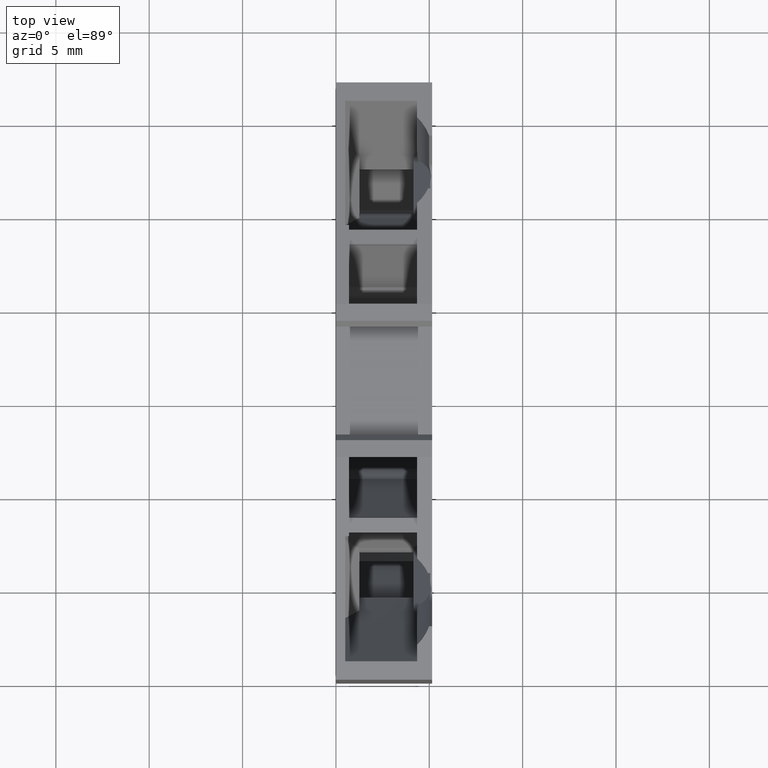
[diagram: clean part render]
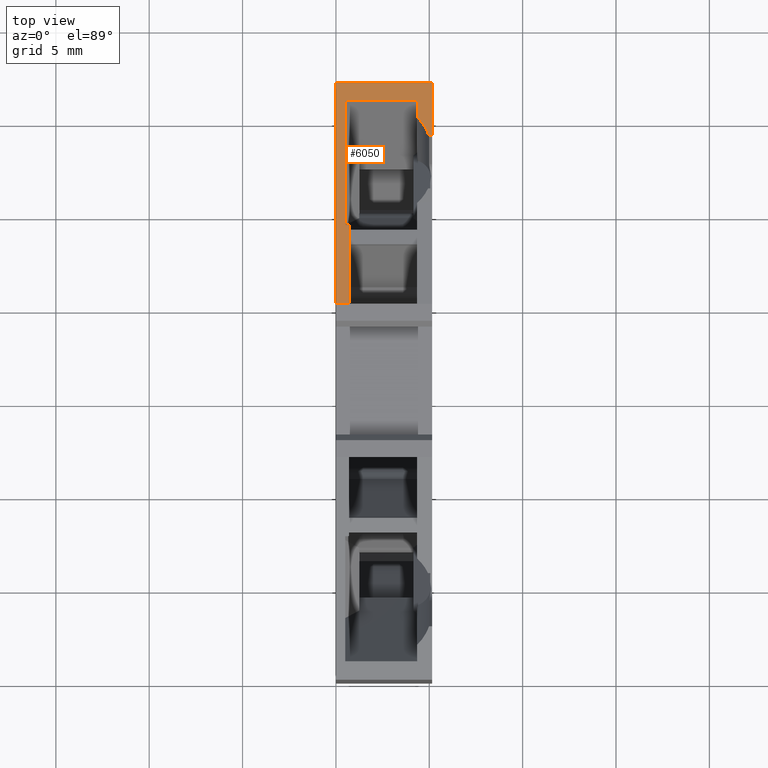
[diagram: same view with one face highlighted and labeled with its STEP entity id]
A machine part, top view. The second image highlights one B-rep face of the part: STEP entity #6050.
In plain terms, the highlighted planar face has unit normal (-0, -0.1736, -0.9848).
Its self-contained STEP definition (entity closure, byte-faithful):
#1500=CARTESIAN_POINT('',(6.44969629117246,75.7148182090403,
55.0499999999999));
#1510=DIRECTION('',(0.422618261740696,-0.906307787036652,
-7.08496653485321E-16));
#1520=VECTOR('',#1510,1.);
#1530=LINE('',#1500,#1520);
#1960=CARTESIAN_POINT('',(-4.13156586621116,98.4064081332756,55.05));
#1970=VERTEX_POINT('',#1960);
#2000=CARTESIAN_POINT('',(-2.90515227636565,95.7763557024449,
55.0499999999999));
#2010=VERTEX_POINT('',#2000);
#2020=EDGE_CURVE('',#1970,#2010,#1530,.T.);
#2550=CARTESIAN_POINT('',(-2.90515227636562,95.7763557024449,
60.2000000000001));
#2560=VERTEX_POINT('',#2550);
#2590=CARTESIAN_POINT('',(6.44969629117248,75.7148182090403,
60.1999999999999));
#2600=DIRECTION('',(-0.422618261740696,0.906307787036652,
7.08496653485321E-16));
#2610=VECTOR('',#2600,1.);
#2620=LINE('',#2590,#2610);
#2630=CARTESIAN_POINT('',(-8.01189244908618,106.727795344088,60.2));
#2640=VERTEX_POINT('',#2630);
#2650=EDGE_CURVE('',#2560,#2640,#2620,.T.);
#5270=CARTESIAN_POINT('',(-6.1946339236013,102.830671859831,
59.4999999999999));
#5280=DIRECTION('',(0.906307787036652,0.422618261740696,
-4.01808419017144E-15));
#5290=DIRECTION('',(-0.422618261740696,0.906307787036652,
7.08496653485322E-16));
#5300=AXIS2_PLACEMENT_3D('',#5270,#5280,#5290);
#5310=PLANE('',#5300);
#5320=CARTESIAN_POINT('',(-2.90515227636584,95.7763557024448,
1.19999999999992));
#5330=DIRECTION('',(3.9410446146663E-15,1.05599972183487E-15,1.));
#5340=VECTOR('',#5330,1.);
#5350=LINE('',#5320,#5340);
#5360=EDGE_CURVE('',#2010,#2560,#5350,.T.);
#5370=ORIENTED_EDGE('',*,*,#5360,.T.);
#5380=ORIENTED_EDGE('',*,*,#2020,.T.);
#5390=CARTESIAN_POINT('',(-4.13156586621133,98.4064081332755,
1.19999999999992));
#5400=DIRECTION('',(3.34219736637615E-15,2.34023179012123E-15,1.));
#5410=VECTOR('',#5400,1.);
#5420=LINE('',#5390,#5410);
#5430=CARTESIAN_POINT('',(-4.13156586621116,98.4064081332756,
55.2084248015004));
#5440=VERTEX_POINT('',#5430);
#5450=EDGE_CURVE('',#1970,#5440,#5420,.T.);
#5460=ORIENTED_EDGE('',*,*,#5450,.F.);
#5470=CARTESIAN_POINT('',(-4.5164660988252,99.2318293458222,
57.665222820032));
#5480=DIRECTION('',(0.906307787036652,0.422618261740696,
-4.01808419017144E-15));
#5490=DIRECTION('',(-0.422618261740696,0.906307787036652,
1.95974123980809E-14));
#5500=AXIS2_PLACEMENT_3D('',#5470,#5480,#5490);
#5510=ELLIPSE('',#5500,2.65574601904709,2.61539926958888);
#5520=CARTESIAN_POINT('',(-3.70844623507214,97.4990251560945,
55.8499999999999));
#5530=VERTEX_POINT('',#5520);
#5540=EDGE_CURVE('',#5530,#5440,#5510,.T.);
#5550=ORIENTED_EDGE('',*,*,#5540,.T.);
#5560=CARTESIAN_POINT('',(6.44969629119347,75.7148182090405,
55.8499999999999));
#5570=DIRECTION('',(0.422618261741274,-0.906307787036382,
-1.46072630971619E-17));
#5580=VECTOR('',#5570,1.);
#5590=LINE('',#5560,#5580);
#5600=CARTESIAN_POINT('',(-3.33030985927537,96.6881090813019,
55.8499999999999));
#5610=VERTEX_POINT('',#5600);
#5620=EDGE_CURVE('',#5530,#5610,#5590,.T.);
#5630=ORIENTED_EDGE('',*,*,#5620,.F.);
#5640=CARTESIAN_POINT('',(-3.33030985927204,96.6881090813046,
1.19999999999993));
#5650=DIRECTION('',(3.20877657542973E-15,2.57992260412729E-15,1.));
#5660=VECTOR('',#5650,1.);
#5670=LINE('',#5640,#5660);
#5680=CARTESIAN_POINT('',(-3.33030985927535,96.6881090813019,
59.6999999999999));
#5690=VERTEX_POINT('',#5680);
#5700=EDGE_CURVE('',#5610,#5690,#5670,.T.);
#5710=ORIENTED_EDGE('',*,*,#5700,.F.);
#5720=CARTESIAN_POINT('',(6.44969629119349,75.7148182090405,
59.6999999999999));
#5730=DIRECTION('',(-0.422618261741274,0.906307787036382,
1.46072630971619E-17));
#5740=VECTOR('',#5730,1.);
#5750=LINE('',#5720,#5740);
#5760=CARTESIAN_POINT('',(-6.19463392359896,102.830671859826,
59.6999999999999));
#5770=VERTEX_POINT('',#5760);
#5780=EDGE_CURVE('',#5690,#5770,#5750,.T.);
#5790=ORIENTED_EDGE('',*,*,#5780,.F.);
#5800=CARTESIAN_POINT('',(-6.19463392359914,102.830671859826,
1.19999999999993));
#5810=DIRECTION('',(-3.62383688746913E-15,-1.68982289253143E-15,-1.));
#5820=VECTOR('',#5810,1.);
#5830=LINE('',#5800,#5820);
#5840=CARTESIAN_POINT('',(-6.19463392359899,102.830671859826,
59.4999999999999));
#5850=VERTEX_POINT('',#5840);
#5860=EDGE_CURVE('',#5770,#5850,#5830,.T.);
#5870=ORIENTED_EDGE('',*,*,#5860,.F.);
#5880=CARTESIAN_POINT('',(6.44969629117248,75.7148182090403,
59.4999999999999));
#5890=DIRECTION('',(-0.422618261740696,0.906307787036652,
1.46072630945981E-17));
#5900=VECTOR('',#5890,1.);
#5910=LINE('',#5880,#5900);
#5920=CARTESIAN_POINT('',(-8.01189244908387,106.727795344083,
59.4999999999999));
#5930=VERTEX_POINT('',#5920);
#5940=EDGE_CURVE('',#5850,#5930,#5910,.T.);
#5950=ORIENTED_EDGE('',*,*,#5940,.F.);
#5960=CARTESIAN_POINT('',(-8.01189244908639,106.727795344088,
1.19999999999993));
#5970=DIRECTION('',(3.9410446146663E-15,1.05599972183487E-15,1.));
#5980=VECTOR('',#5970,1.);
#5990=LINE('',#5960,#5980);
#6000=EDGE_CURVE('',#5930,#2640,#5990,.T.);
#6010=ORIENTED_EDGE('',*,*,#6000,.F.);
#6020=ORIENTED_EDGE('',*,*,#2650,.T.);
#6030=EDGE_LOOP('',(#6020,#6010,#5950,#5870,#5790,#5710,#5630,#5550,
#5460,#5380,#5370));
#6040=FACE_OUTER_BOUND('',#6030,.T.);
#6050=ADVANCED_FACE('',(#6040),#5310,.F.);